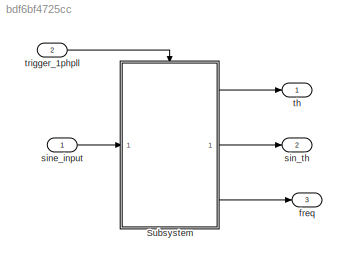
MODEL slx_bdf6bf4725cc
KIND model
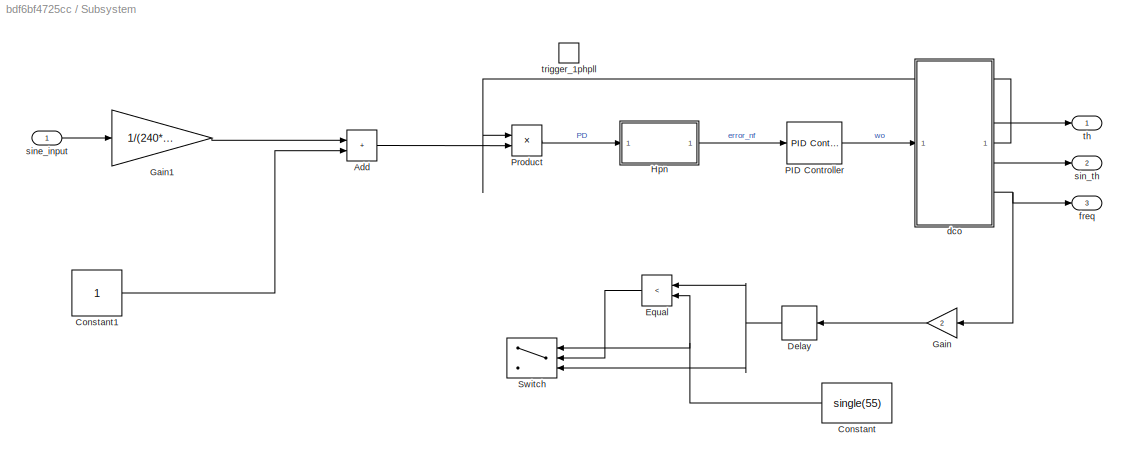
BLOCK [SubSystem] Subsystem
BLOCK [Sum] Subsystem/Add
  IconShape = rectangular
BLOCK [Constant] Subsystem/Constant
  NameLocation = top
  OutDataTypeStr = single
  SampleTime = -1
  Value = single(55)
BLOCK [Constant] Subsystem/Constant1
  OutDataTypeStr = single
  SampleTime = -1
BLOCK [Delay] Subsystem/Delay
  InitialCondition = single(2*55)
  InputPortMap = u0
  NameLocation = top
BLOCK [RelationalOperator] Subsystem/Equal
  InputSameDT = off
  NameLocation = top
  Operator = <
  OutDataTypeStr = boolean
  RndMeth = Simplest
BLOCK [Gain] Subsystem/Gain
  Gain = 2
  NameLocation = top
  OutDataTypeStr = single
BLOCK [Gain] Subsystem/Gain1
  Gain = 1/(240*sqrt(2))
  OutDataTypeStr = single
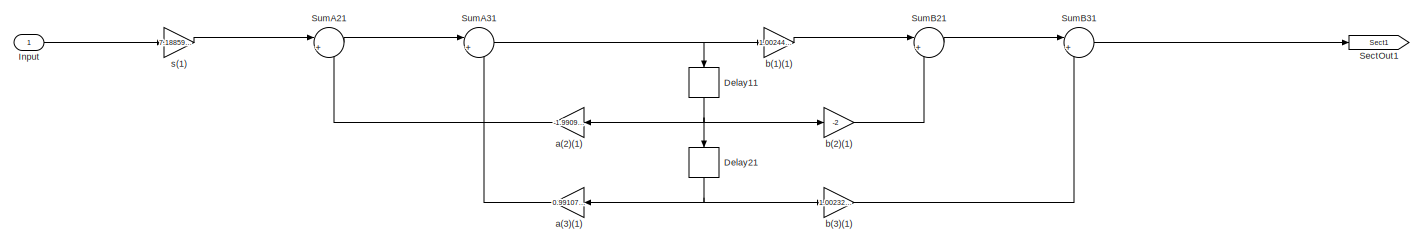
[diagram: Subsystem/Hpn - part 1/3, left side, full height]
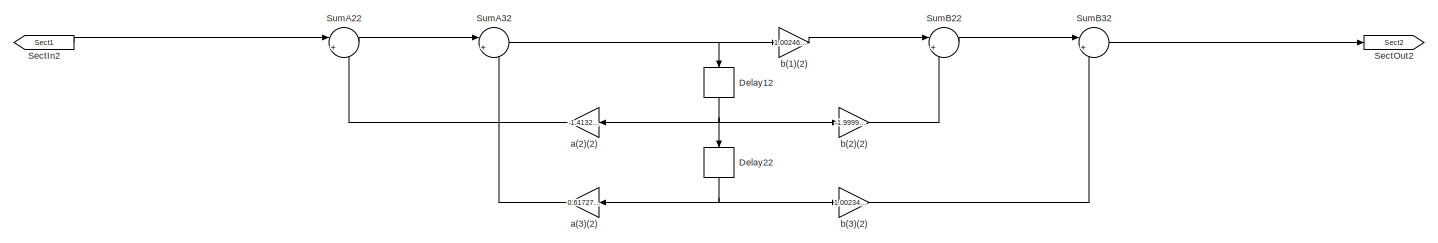
[diagram: Subsystem/Hpn - part 2/3, center side, full height]
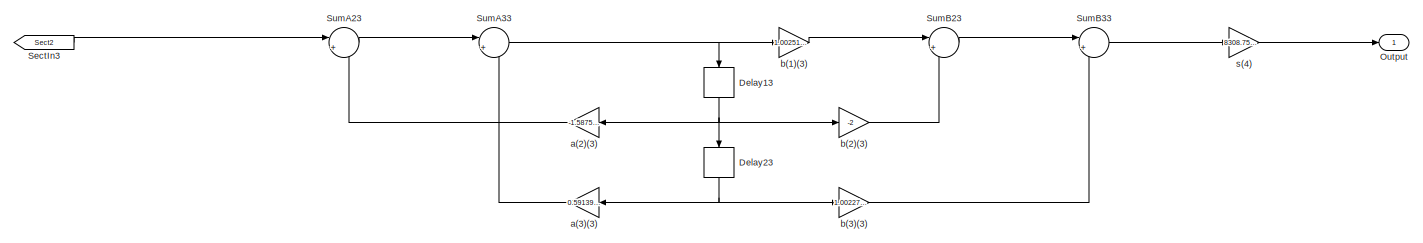
[diagram: Subsystem/Hpn - part 3/3, right side, full height]
BLOCK [SubSystem] Subsystem/Hpn
  ErrorFcn = dspFilterRealizedInBasicElemsAlgLoopErrFcnCallback
  Tag = FilterWizardSubSystem
  UserDataPersistent = on
BLOCK [Delay] Subsystem/Hpn/Delay11
  DelayLength = 1
  InitialCondition = 0
  InputPortMap = u0
  NameLocation = right
BLOCK [Delay] Subsystem/Hpn/Delay12
  DelayLength = 1
  InitialCondition = 0
  InputPortMap = u0
  NameLocation = right
BLOCK [Delay] Subsystem/Hpn/Delay13
  DelayLength = 1
  InitialCondition = 0
  InputPortMap = u0
  NameLocation = right
BLOCK [Delay] Subsystem/Hpn/Delay21
  DelayLength = 1
  InitialCondition = 0
  InputPortMap = u0
  NameLocation = right
BLOCK [Delay] Subsystem/Hpn/Delay22
  DelayLength = 1
  InitialCondition = 0
  InputPortMap = u0
  NameLocation = right
BLOCK [Delay] Subsystem/Hpn/Delay23
  DelayLength = 1
  InitialCondition = 0
  InputPortMap = u0
  NameLocation = right
BLOCK [Inport] Subsystem/Hpn/Input
BLOCK [Outport] Subsystem/Hpn/Output
BLOCK [From] Subsystem/Hpn/SectIn2
  GotoTag = Sect1
BLOCK [From] Subsystem/Hpn/SectIn3
  GotoTag = Sect2
BLOCK [Goto] Subsystem/Hpn/SectOut1
  GotoTag = Sect1
BLOCK [Goto] Subsystem/Hpn/SectOut2
  GotoTag = Sect2
BLOCK [Sum] Subsystem/Hpn/SumA21
  Inputs = |+-
  OutDataTypeStr = Inherit: Same as first input
  RndMeth = Nearest
  SaturateOnIntegerOverflow = on
BLOCK [Sum] Subsystem/Hpn/SumA22
  Inputs = |+-
  OutDataTypeStr = Inherit: Same as first input
  RndMeth = Nearest
  SaturateOnIntegerOverflow = on
BLOCK [Sum] Subsystem/Hpn/SumA23
  Inputs = |+-
  OutDataTypeStr = Inherit: Same as first input
  RndMeth = Nearest
  SaturateOnIntegerOverflow = on
BLOCK [Sum] Subsystem/Hpn/SumA31
  Inputs = |+-
  OutDataTypeStr = Inherit: Same as first input
  RndMeth = Nearest
  SaturateOnIntegerOverflow = on
BLOCK [Sum] Subsystem/Hpn/SumA32
  Inputs = |+-
  OutDataTypeStr = Inherit: Same as first input
  RndMeth = Nearest
  SaturateOnIntegerOverflow = on
BLOCK [Sum] Subsystem/Hpn/SumA33
  Inputs = |+-
  OutDataTypeStr = Inherit: Same as first input
  RndMeth = Nearest
  SaturateOnIntegerOverflow = on
BLOCK [Sum] Subsystem/Hpn/SumB21
  Inputs = |++
  OutDataTypeStr = Inherit: Same as first input
  RndMeth = Nearest
  SaturateOnIntegerOverflow = on
BLOCK [Sum] Subsystem/Hpn/SumB22
  Inputs = |++
  OutDataTypeStr = Inherit: Same as first input
  RndMeth = Nearest
  SaturateOnIntegerOverflow = on
BLOCK [Sum] Subsystem/Hpn/SumB23
  Inputs = |++
  OutDataTypeStr = Inherit: Same as first input
  RndMeth = Nearest
  SaturateOnIntegerOverflow = on
BLOCK [Sum] Subsystem/Hpn/SumB31
  Inputs = |++
  OutDataTypeStr = Inherit: Same as first input
  RndMeth = Nearest
  SaturateOnIntegerOverflow = on
BLOCK [Sum] Subsystem/Hpn/SumB32
  Inputs = |++
  OutDataTypeStr = Inherit: Same as first input
  RndMeth = Nearest
  SaturateOnIntegerOverflow = on
BLOCK [Sum] Subsystem/Hpn/SumB33
  Inputs = |++
  OutDataTypeStr = Inherit: Same as first input
  RndMeth = Nearest
  SaturateOnIntegerOverflow = on
BLOCK [Gain] Subsystem/Hpn/a(2)(1)
  Gain = -1.99098708386854018
  OutDataTypeStr = Inherit: Same as input
  ParamDataTypeStr = single
  RndMeth = Nearest
  SaturateOnIntegerOverflow = on
BLOCK [Gain] Subsystem/Hpn/a(2)(2)
  Gain = -1.41326496089579012
  OutDataTypeStr = Inherit: Same as input
  ParamDataTypeStr = single
  RndMeth = Nearest
  SaturateOnIntegerOverflow = on
BLOCK [Gain] Subsystem/Hpn/a(2)(3)
  Gain = -1.58759889795874831
  OutDataTypeStr = Inherit: Same as input
  ParamDataTypeStr = single
  RndMeth = Nearest
  SaturateOnIntegerOverflow = on
BLOCK [Gain] Subsystem/Hpn/a(3)(1)
  Gain = 0.991071580323747647
  OutDataTypeStr = Inherit: Same as input
  ParamDataTypeStr = single
  RndMeth = Nearest
  SaturateOnIntegerOverflow = on
BLOCK [Gain] Subsystem/Hpn/a(3)(2)
  Gain = 0.617274793282341916
  OutDataTypeStr = Inherit: Same as input
  ParamDataTypeStr = single
  RndMeth = Nearest
  SaturateOnIntegerOverflow = on
BLOCK [Gain] Subsystem/Hpn/a(3)(3)
  Gain = 0.591398351399471278
  OutDataTypeStr = Inherit: Same as input
  ParamDataTypeStr = single
  RndMeth = Nearest
  SaturateOnIntegerOverflow = on
BLOCK [Gain] Subsystem/Hpn/b(1)(1)
  Gain = 1.00244569735237654
  OutDataTypeStr = Inherit: Same as input
  ParamDataTypeStr = single
  RndMeth = Nearest
  SaturateOnIntegerOverflow = on
BLOCK [Gain] Subsystem/Hpn/b(1)(2)
  Gain = 1.00246019987679724
  OutDataTypeStr = Inherit: Same as input
  ParamDataTypeStr = single
  RndMeth = Nearest
  SaturateOnIntegerOverflow = on
BLOCK [Gain] Subsystem/Hpn/b(1)(3)
  Gain = 1.00251266836403419
  OutDataTypeStr = Inherit: Same as input
  ParamDataTypeStr = single
  RndMeth = Nearest
  SaturateOnIntegerOverflow = on
BLOCK [Gain] Subsystem/Hpn/b(2)(1)
  Gain = -2
  OutDataTypeStr = Inherit: Same as input
  ParamDataTypeStr = single
  RndMeth = Nearest
  SaturateOnIntegerOverflow = on
BLOCK [Gain] Subsystem/Hpn/b(2)(2)
  Gain = -1.99999999999999978
  OutDataTypeStr = Inherit: Same as input
  ParamDataTypeStr = single
  RndMeth = Nearest
  SaturateOnIntegerOverflow = on
BLOCK [Gain] Subsystem/Hpn/b(2)(3)
  Gain = -2
  OutDataTypeStr = Inherit: Same as input
  ParamDataTypeStr = single
  RndMeth = Nearest
  SaturateOnIntegerOverflow = on
BLOCK [Gain] Subsystem/Hpn/b(3)(1)
  Gain = 1.00232641530990474
  OutDataTypeStr = Inherit: Same as input
  ParamDataTypeStr = single
  RndMeth = Nearest
  SaturateOnIntegerOverflow = on
BLOCK [Gain] Subsystem/Hpn/b(3)(2)
  Gain = 1.00234056000110994
  OutDataTypeStr = Inherit: Same as input
  ParamDataTypeStr = single
  RndMeth = Nearest
  SaturateOnIntegerOverflow = on
BLOCK [Gain] Subsystem/Hpn/b(3)(3)
  Gain = 1.00227374644843237
  OutDataTypeStr = Inherit: Same as input
  ParamDataTypeStr = single
  RndMeth = Nearest
  SaturateOnIntegerOverflow = on
BLOCK [Gain] Subsystem/Hpn/s(1)
  Gain = 7.1885920346266273e-05
  OutDataTypeStr = Inherit: Same as input
  ParamDataTypeStr = single
  RndMeth = Nearest
  SaturateOnIntegerOverflow = on
BLOCK [Gain] Subsystem/Hpn/s(4)
  Gain = 8308.75345300938534
  OutDataTypeStr = Inherit: Same as input
  ParamDataTypeStr = single
  RndMeth = Nearest
  SaturateOnIntegerOverflow = on
BLOCK [Reference] Subsystem/PID Controller  REF=slpidlib/PID Controller
  LibrarySourceBlock = simulink/Continuous/PID Controller
  SourceBlock = slpidlib/PID Controller
  SourceType = PID 1dof
BLOCK [Product] Subsystem/Product
  OutDataTypeStr = single
BLOCK [Switch] Subsystem/Switch
  Criteria = u2 > Threshold
  InputSameDT = off
  NameLocation = top
  SaturateOnIntegerOverflow = off
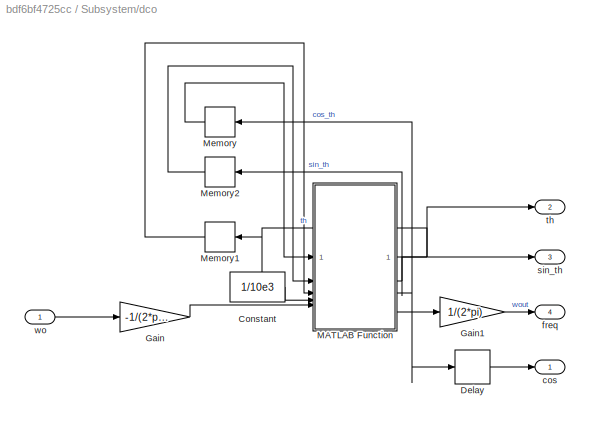
BLOCK [SubSystem] Subsystem/dco
BLOCK [Constant] Subsystem/dco/Constant
  OutDataTypeStr = single
  SampleTime = -1
  Value = 1/10e3
BLOCK [Delay] Subsystem/dco/Delay
  DelayLength = 1
  InitialCondition = single(0')
  InputPortMap = u0
BLOCK [Gain] Subsystem/dco/Gain
  Commented = through
  Gain = -1/(2*pi)
BLOCK [Gain] Subsystem/dco/Gain1
  Gain = 1/(2*pi)
  OutDataTypeStr = single
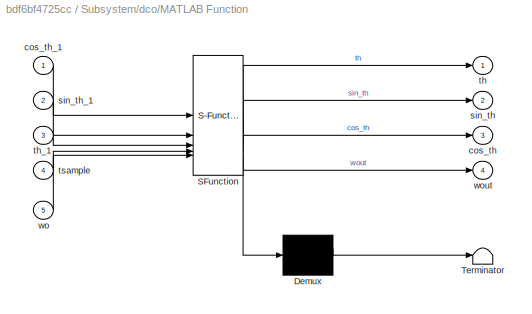
BLOCK [SubSystem] Subsystem/dco/MATLAB Function
  ErrorFcn = Stateflow.Translate.translate
  LibrarySourceBlock = simulink/User-Defined\nFunctions/MATLAB Function
  PermitHierarchicalResolution = ExplicitOnly
  SFBlockType = MATLAB Function
  TreatAsAtomicUnit = on
BLOCK [Demux] Subsystem/dco/MATLAB Function/ Demux 
  Outputs = 1
BLOCK [S-Function] Subsystem/dco/MATLAB Function/ SFunction 
  EnableBusSupport = on
  FunctionName = sf_sfun
  PortCounts = [5 5]
  SFcnIsStateOwnerBlock = off
  SFunctionDeploymentMode = off
  Tag = Stateflow S-Function 2
BLOCK [Terminator] Subsystem/dco/MATLAB Function/ Terminator 
BLOCK [Outport] Subsystem/dco/MATLAB Function/cos_th
  Port = 3
BLOCK [Inport] Subsystem/dco/MATLAB Function/cos_th_1
BLOCK [Outport] Subsystem/dco/MATLAB Function/sin_th
  Port = 2
BLOCK [Inport] Subsystem/dco/MATLAB Function/sin_th_1
  Port = 2
BLOCK [Outport] Subsystem/dco/MATLAB Function/th
BLOCK [Inport] Subsystem/dco/MATLAB Function/th_1
  Port = 3
BLOCK [Inport] Subsystem/dco/MATLAB Function/tsample
  Port = 4
BLOCK [Inport] Subsystem/dco/MATLAB Function/wo
  Port = 5
BLOCK [Outport] Subsystem/dco/MATLAB Function/wout
  Port = 4
BLOCK [Memory] Subsystem/dco/Memory
  InheritSampleTime = on
  InitialCondition = .99
  NameLocation = top
BLOCK [Memory] Subsystem/dco/Memory1
  InheritSampleTime = on
  NameLocation = top
BLOCK [Memory] Subsystem/dco/Memory2
  InheritSampleTime = on
  NameLocation = top
BLOCK [Outport] Subsystem/dco/cos
BLOCK [Outport] Subsystem/dco/freq
  Port = 4
BLOCK [Outport] Subsystem/dco/sin_th
  Port = 3
BLOCK [Outport] Subsystem/dco/th
  Port = 2
BLOCK [Inport] Subsystem/dco/wo
BLOCK [Outport] Subsystem/freq
  Port = 3
BLOCK [Outport] Subsystem/sin_th
  Port = 2
BLOCK [Inport] Subsystem/sine_input 
BLOCK [Outport] Subsystem/th
BLOCK [TriggerPort] Subsystem/trigger_1phpll
  PortDimensions = 1
  StatesWhenEnabling = held
  TriggerType = function-call
  VariantControl = (inherit)
BLOCK [Outport] freq
  Port = 3
BLOCK [Outport] sin_th
  Port = 2
BLOCK [Inport] sine_input 
BLOCK [Outport] th
BLOCK [Inport] trigger_1phpll
  OutputFunctionCall = on
  Port = 2
LINE Subsystem/Add:1 -> Subsystem/Product:2
LINE Subsystem/Constant1:1 -> Subsystem/Add:2
NET Subsystem/Constant:1 -> Subsystem/Equal:2, Subsystem/Switch:1
NET Subsystem/Delay:1 -> Subsystem/Equal:1, Subsystem/Switch:3
LINE Subsystem/Equal:1 -> Subsystem/Switch:2
LINE Subsystem/Gain1:1 -> Subsystem/Add:1
LINE Subsystem/Gain:1 -> Subsystem/Delay:1
NET Subsystem/Hpn/Delay11:1 -> Subsystem/Hpn/Delay21:1, Subsystem/Hpn/a(2)(1):1, Subsystem/Hpn/b(2)(1):1
NET Subsystem/Hpn/Delay12:1 -> Subsystem/Hpn/Delay22:1, Subsystem/Hpn/a(2)(2):1, Subsystem/Hpn/b(2)(2):1
NET Subsystem/Hpn/Delay13:1 -> Subsystem/Hpn/Delay23:1, Subsystem/Hpn/a(2)(3):1, Subsystem/Hpn/b(2)(3):1
NET Subsystem/Hpn/Delay21:1 -> Subsystem/Hpn/a(3)(1):1, Subsystem/Hpn/b(3)(1):1
NET Subsystem/Hpn/Delay22:1 -> Subsystem/Hpn/a(3)(2):1, Subsystem/Hpn/b(3)(2):1
NET Subsystem/Hpn/Delay23:1 -> Subsystem/Hpn/a(3)(3):1, Subsystem/Hpn/b(3)(3):1
LINE Subsystem/Hpn/Input:1 -> Subsystem/Hpn/s(1):1
LINE Subsystem/Hpn/SectIn2:1 -> Subsystem/Hpn/SumA22:1
LINE Subsystem/Hpn/SectIn3:1 -> Subsystem/Hpn/SumA23:1
LINE Subsystem/Hpn/SumA21:1 -> Subsystem/Hpn/SumA31:1
LINE Subsystem/Hpn/SumA22:1 -> Subsystem/Hpn/SumA32:1
LINE Subsystem/Hpn/SumA23:1 -> Subsystem/Hpn/SumA33:1
NET Subsystem/Hpn/SumA31:1 -> Subsystem/Hpn/Delay11:1, Subsystem/Hpn/b(1)(1):1
NET Subsystem/Hpn/SumA32:1 -> Subsystem/Hpn/Delay12:1, Subsystem/Hpn/b(1)(2):1
NET Subsystem/Hpn/SumA33:1 -> Subsystem/Hpn/Delay13:1, Subsystem/Hpn/b(1)(3):1
LINE Subsystem/Hpn/SumB21:1 -> Subsystem/Hpn/SumB31:1
LINE Subsystem/Hpn/SumB22:1 -> Subsystem/Hpn/SumB32:1
LINE Subsystem/Hpn/SumB23:1 -> Subsystem/Hpn/SumB33:1
LINE Subsystem/Hpn/SumB31:1 -> Subsystem/Hpn/SectOut1:1
LINE Subsystem/Hpn/SumB32:1 -> Subsystem/Hpn/SectOut2:1
LINE Subsystem/Hpn/SumB33:1 -> Subsystem/Hpn/s(4):1
LINE Subsystem/Hpn/a(2)(1):1 -> Subsystem/Hpn/SumA21:2
LINE Subsystem/Hpn/a(2)(2):1 -> Subsystem/Hpn/SumA22:2
LINE Subsystem/Hpn/a(2)(3):1 -> Subsystem/Hpn/SumA23:2
LINE Subsystem/Hpn/a(3)(1):1 -> Subsystem/Hpn/SumA31:2
LINE Subsystem/Hpn/a(3)(2):1 -> Subsystem/Hpn/SumA32:2
LINE Subsystem/Hpn/a(3)(3):1 -> Subsystem/Hpn/SumA33:2
LINE Subsystem/Hpn/b(1)(1):1 -> Subsystem/Hpn/SumB21:1
LINE Subsystem/Hpn/b(1)(2):1 -> Subsystem/Hpn/SumB22:1
LINE Subsystem/Hpn/b(1)(3):1 -> Subsystem/Hpn/SumB23:1
LINE Subsystem/Hpn/b(2)(1):1 -> Subsystem/Hpn/SumB21:2
LINE Subsystem/Hpn/b(2)(2):1 -> Subsystem/Hpn/SumB22:2
LINE Subsystem/Hpn/b(2)(3):1 -> Subsystem/Hpn/SumB23:2
LINE Subsystem/Hpn/b(3)(1):1 -> Subsystem/Hpn/SumB31:2
LINE Subsystem/Hpn/b(3)(2):1 -> Subsystem/Hpn/SumB32:2
LINE Subsystem/Hpn/b(3)(3):1 -> Subsystem/Hpn/SumB33:2
LINE Subsystem/Hpn/s(1):1 -> Subsystem/Hpn/SumA21:1
LINE Subsystem/Hpn/s(4):1 -> Subsystem/Hpn/Output:1
LINE Subsystem/Hpn:1 -> Subsystem/PID Controller:1
LINE Subsystem/PID Controller:1 -> Subsystem/dco:1
LINE Subsystem/Product:1 -> Subsystem/Hpn:1
LINE Subsystem/dco/Constant:1 -> Subsystem/dco/MATLAB Function:4
LINE Subsystem/dco/Delay:1 -> Subsystem/dco/cos:1
LINE Subsystem/dco/Gain1:1 -> Subsystem/dco/freq:1
LINE Subsystem/dco/Gain:1 -> Subsystem/dco/MATLAB Function:5
NET Subsystem/dco/MATLAB Function:1 -> Subsystem/dco/Memory1:1, Subsystem/dco/th:1
NET Subsystem/dco/MATLAB Function:2 -> Subsystem/dco/Memory2:1, Subsystem/dco/sin_th:1
NET Subsystem/dco/MATLAB Function:3 -> Subsystem/dco/Delay:1, Subsystem/dco/Memory:1
LINE Subsystem/dco/MATLAB Function:4 -> Subsystem/dco/Gain1:1
LINE Subsystem/dco/Memory1:1 -> Subsystem/dco/MATLAB Function:3
LINE Subsystem/dco/Memory2:1 -> Subsystem/dco/MATLAB Function:2
LINE Subsystem/dco/Memory:1 -> Subsystem/dco/MATLAB Function:1
LINE Subsystem/dco/wo:1 -> Subsystem/dco/Gain:1
LINE Subsystem/dco:1 -> Subsystem/Product:1
LINE Subsystem/dco:2 -> Subsystem/th:1
LINE Subsystem/dco:3 -> Subsystem/sin_th:1
NET Subsystem/dco:4 -> Subsystem/Gain:1, Subsystem/freq:1
LINE Subsystem/sine_input :1 -> Subsystem/Gain1:1
LINE Subsystem:1 -> th:1
LINE Subsystem:2 -> sin_th:1
LINE Subsystem:3 -> freq:1
LINE sine_input :1 -> Subsystem:1
LINE trigger_1phpll:1 -> Subsystem:trigger
note: NET lines group one-source signal fan-out (src -> all destinations, sorted); 1:1 wires keep LINE
CHART Subsystem/dco/MATLAB Function states=1 transitions=1
  STATE_LABEL 'eML_blk_kernel()'
  STATE_LABEL 'SCRIPT:\n function [th,sin_th,cos_th,wout]= dco(cos_th_1,sin_th_1,th_1,tsample,wo)\n        ws=single(2*pi*50);\n        wout=single(wo+ws);\n        \n        %Sin is for showing the overlaping w the input \n        sin_th=sin_th_1+(cos_th_1*wout*tsample);%Sin(t+dt)=sin(t)+cos(t)*dt\n        cos_th=cos_th_1-(sin_th_1*wout*tsample);\n        \n        sin_th=max([sin_th -1]);\n        cos_th=max([cos_th -1]...<+246ch>'
CHART  states=0 transitions=0
